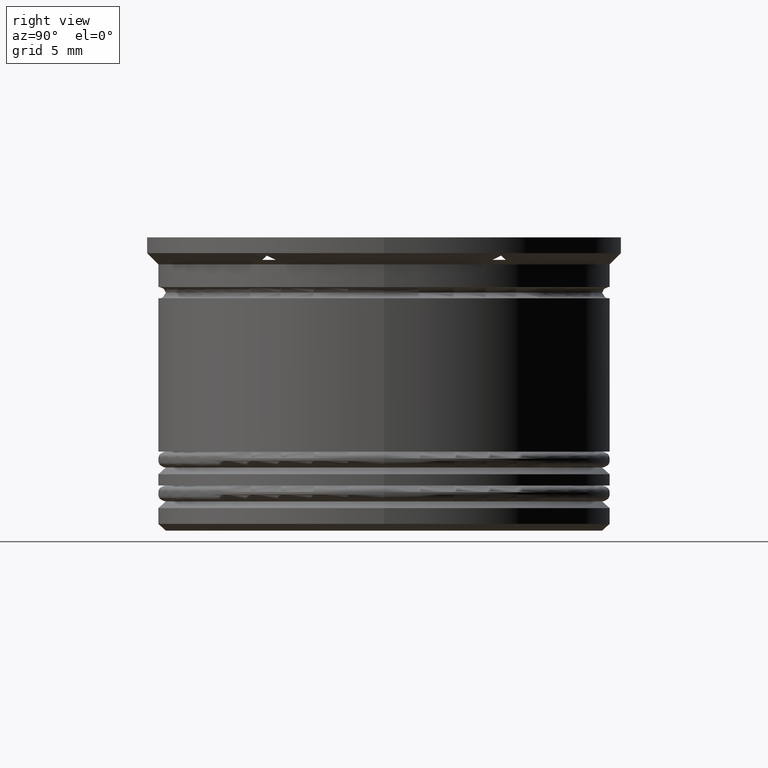
[diagram: clean part render]
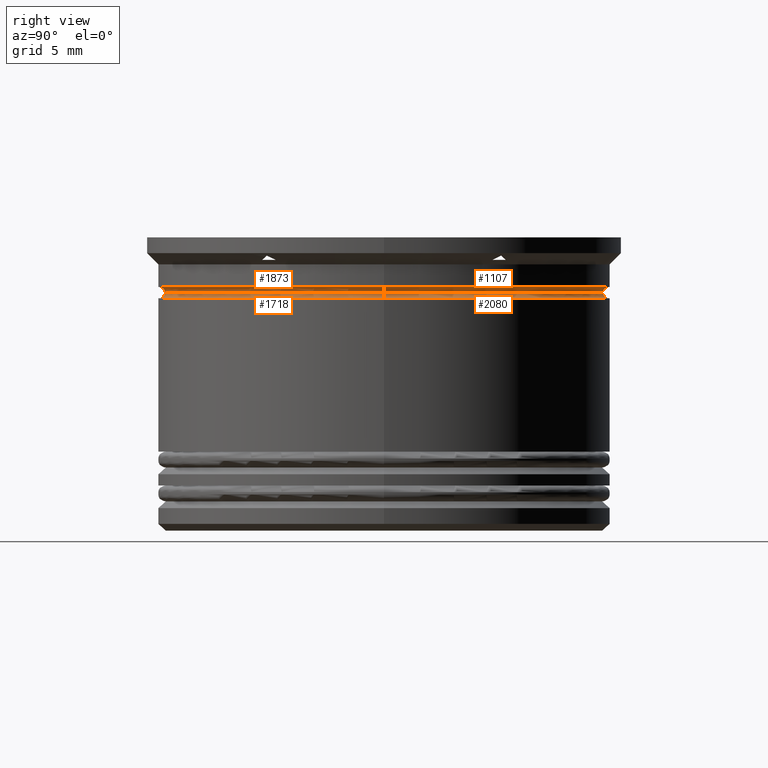
[diagram: same view with one multi-face feature highlighted, each face labeled with its STEP entity id]
A machine part, right view. The highlighted faces form ONE feature: a constant-radius fillet chain: 4 tangent blend faces with common blend radius 0.25 mm. The faces share edges in the B-rep.
Their STEP definitions:
[1] entity #1718 (Torus):
#8 = VERTEX_POINT ( 'NONE', #1612 ) ;
#23 = CIRCLE ( 'NONE', #274, 0.2500000000000002220 ) ;
#95 = AXIS2_PLACEMENT_3D ( 'NONE', #1422, #1590, #1444 ) ;
#148 = DIRECTION ( 'NONE',  ( 0.000000000000000000, -1.000000000000000000, 0.000000000000000000 ) ) ;
#195 = VERTEX_POINT ( 'NONE', #1335 ) ;
#262 = CARTESIAN_POINT ( 'NONE',  ( -9.700000000000004619, 1.187907395172932988E-15, -2.449999999999999734 ) ) ;
#268 = ORIENTED_EDGE ( 'NONE', *, *, #305, .F. ) ;
#274 = AXIS2_PLACEMENT_3D ( 'NONE', #1651, #148, #307 ) ;
#305 = EDGE_CURVE ( 'NONE', #901, #195, #1350, .T. ) ;
#307 = DIRECTION ( 'NONE',  ( 0.000000000000000000, 0.000000000000000000, -1.000000000000000000 ) ) ;
#411 = AXIS2_PLACEMENT_3D ( 'NONE', #1254, #1232, #1211 ) ;
#423 = TOROIDAL_SURFACE ( 'NONE', #677, 9.950000000000004619, 0.2500000000000002220 ) ;
#520 = CARTESIAN_POINT ( 'NONE',  ( 0.000000000000000000, 0.000000000000000000, -2.449999999999999734 ) ) ;
#677 = AXIS2_PLACEMENT_3D ( 'NONE', #520, #2145, #1979 ) ;
#806 = EDGE_CURVE ( 'NONE', #2071, #195, #2020, .T. ) ;
#876 = EDGE_LOOP ( 'NONE', ( #1939, #1609, #268, #1053 ) ) ;
#901 = VERTEX_POINT ( 'NONE', #1664 ) ;
#970 = EDGE_CURVE ( 'NONE', #2071, #8, #1743, .T. ) ;
#1013 = FACE_OUTER_BOUND ( 'NONE', #876, .T. ) ;
#1051 = CARTESIAN_POINT ( 'NONE',  ( 0.000000000000000000, 0.000000000000000000, -2.449999999999999734 ) ) ;
#1053 = ORIENTED_EDGE ( 'NONE', *, *, #2166, .F. ) ;
#1211 = DIRECTION ( 'NONE',  ( -1.000000000000000000, 0.000000000000000000, 0.000000000000000000 ) ) ;
#1232 = DIRECTION ( 'NONE',  ( 0.000000000000000000, 0.000000000000000000, -1.000000000000000000 ) ) ;
#1254 = CARTESIAN_POINT ( 'NONE',  ( 0.000000000000000000, 0.000000000000000000, -2.700000000000000178 ) ) ;
#1335 = CARTESIAN_POINT ( 'NONE',  ( -9.950000000000004619, 1.218523565151617170E-15, -2.700000000000000178 ) ) ;
#1350 = CIRCLE ( 'NONE', #411, 9.950000000000004619 ) ;
#1367 = DIRECTION ( 'NONE',  ( -0.000000000000000000, -0.000000000000000000, 1.000000000000000000 ) ) ;
#1422 = CARTESIAN_POINT ( 'NONE',  ( -9.950000000000004619, 1.218523565151616972E-15, -2.449999999999999734 ) ) ;
#1444 = DIRECTION ( 'NONE',  ( -1.000000000000000000, 1.224646799147357151E-16, 0.000000000000000000 ) ) ;
#1524 = AXIS2_PLACEMENT_3D ( 'NONE', #1051, #1367, #2026 ) ;
#1590 = DIRECTION ( 'NONE',  ( 1.224646799147353207E-16, 1.000000000000000000, 0.000000000000000000 ) ) ;
#1609 = ORIENTED_EDGE ( 'NONE', *, *, #806, .T. ) ;
#1612 = CARTESIAN_POINT ( 'NONE',  ( 9.700000000000004619, 0.000000000000000000, -2.449999999999999734 ) ) ;
#1651 = CARTESIAN_POINT ( 'NONE',  ( 9.950000000000004619, 0.000000000000000000, -2.449999999999999734 ) ) ;
#1664 = CARTESIAN_POINT ( 'NONE',  ( 9.950000000000004619, 0.000000000000000000, -2.700000000000000178 ) ) ;
#1718 = ADVANCED_FACE ( 'NONE', ( #1013 ), #423, .F. ) ;
#1743 = CIRCLE ( 'NONE', #1524, 9.700000000000004619 ) ;
#1939 = ORIENTED_EDGE ( 'NONE', *, *, #970, .F. ) ;
#1979 = DIRECTION ( 'NONE',  ( 1.000000000000000000, 0.000000000000000000, 0.000000000000000000 ) ) ;
#2020 = CIRCLE ( 'NONE', #95, 0.2500000000000002220 ) ;
#2026 = DIRECTION ( 'NONE',  ( 1.000000000000000000, 0.000000000000000000, 0.000000000000000000 ) ) ;
#2071 = VERTEX_POINT ( 'NONE', #262 ) ;
#2145 = DIRECTION ( 'NONE',  ( -0.000000000000000000, -0.000000000000000000, 1.000000000000000000 ) ) ;
#2166 = EDGE_CURVE ( 'NONE', #8, #901, #23, .T. ) ;
[2] entity #1873 (Torus):
#8 = VERTEX_POINT ( 'NONE', #1612 ) ;
#24 = CIRCLE ( 'NONE', #312, 9.950000000000004619 ) ;
#67 = CARTESIAN_POINT ( 'NONE',  ( 9.950000000000004619, 0.000000000000000000, -2.199999999999999734 ) ) ;
#149 = CARTESIAN_POINT ( 'NONE',  ( 9.950000000000004619, 0.000000000000000000, -2.449999999999999734 ) ) ;
#160 = ORIENTED_EDGE ( 'NONE', *, *, #280, .F. ) ;
#193 = EDGE_LOOP ( 'NONE', ( #2001, #1214, #160, #1519 ) ) ;
#262 = CARTESIAN_POINT ( 'NONE',  ( -9.700000000000004619, 1.187907395172932988E-15, -2.449999999999999734 ) ) ;
#280 = EDGE_CURVE ( 'NONE', #1203, #8, #1016, .T. ) ;
#312 = AXIS2_PLACEMENT_3D ( 'NONE', #741, #1385, #909 ) ;
#331 = DIRECTION ( 'NONE',  ( 0.000000000000000000, 0.000000000000000000, -1.000000000000000000 ) ) ;
#669 = DIRECTION ( 'NONE',  ( 0.000000000000000000, -1.000000000000000000, 0.000000000000000000 ) ) ;
#674 = VERTEX_POINT ( 'NONE', #1401 ) ;
#741 = CARTESIAN_POINT ( 'NONE',  ( 0.000000000000000000, 0.000000000000000000, -2.199999999999999734 ) ) ;
#772 = DIRECTION ( 'NONE',  ( -1.000000000000000000, 1.224646799147357151E-16, 0.000000000000000000 ) ) ;
#906 = DIRECTION ( 'NONE',  ( 1.000000000000000000, 0.000000000000000000, 0.000000000000000000 ) ) ;
#909 = DIRECTION ( 'NONE',  ( 1.000000000000000000, 0.000000000000000000, 0.000000000000000000 ) ) ;
#970 = EDGE_CURVE ( 'NONE', #2071, #8, #1743, .T. ) ;
#1016 = CIRCLE ( 'NONE', #1562, 0.2500000000000002220 ) ;
#1051 = CARTESIAN_POINT ( 'NONE',  ( 0.000000000000000000, 0.000000000000000000, -2.449999999999999734 ) ) ;
#1096 = CIRCLE ( 'NONE', #1961, 0.2500000000000002220 ) ;
#1102 = FACE_OUTER_BOUND ( 'NONE', #193, .T. ) ;
#1141 = EDGE_CURVE ( 'NONE', #674, #1203, #24, .T. ) ;
#1181 = EDGE_CURVE ( 'NONE', #674, #2071, #1096, .T. ) ;
#1203 = VERTEX_POINT ( 'NONE', #67 ) ;
#1214 = ORIENTED_EDGE ( 'NONE', *, *, #970, .T. ) ;
#1365 = CARTESIAN_POINT ( 'NONE',  ( 0.000000000000000000, 0.000000000000000000, -2.449999999999999734 ) ) ;
#1367 = DIRECTION ( 'NONE',  ( -0.000000000000000000, -0.000000000000000000, 1.000000000000000000 ) ) ;
#1385 = DIRECTION ( 'NONE',  ( -0.000000000000000000, -0.000000000000000000, 1.000000000000000000 ) ) ;
#1401 = CARTESIAN_POINT ( 'NONE',  ( -9.950000000000004619, 1.218523565151617170E-15, -2.199999999999999734 ) ) ;
#1519 = ORIENTED_EDGE ( 'NONE', *, *, #1141, .F. ) ;
#1524 = AXIS2_PLACEMENT_3D ( 'NONE', #1051, #1367, #2026 ) ;
#1530 = TOROIDAL_SURFACE ( 'NONE', #1820, 9.950000000000004619, 0.2500000000000002220 ) ;
#1562 = AXIS2_PLACEMENT_3D ( 'NONE', #149, #669, #331 ) ;
#1566 = CARTESIAN_POINT ( 'NONE',  ( -9.950000000000004619, 1.218523565151616972E-15, -2.449999999999999734 ) ) ;
#1612 = CARTESIAN_POINT ( 'NONE',  ( 9.700000000000004619, 0.000000000000000000, -2.449999999999999734 ) ) ;
#1743 = CIRCLE ( 'NONE', #1524, 9.700000000000004619 ) ;
#1820 = AXIS2_PLACEMENT_3D ( 'NONE', #1365, #1904, #906 ) ;
#1873 = ADVANCED_FACE ( 'NONE', ( #1102 ), #1530, .F. ) ;
#1904 = DIRECTION ( 'NONE',  ( -0.000000000000000000, -0.000000000000000000, 1.000000000000000000 ) ) ;
#1921 = DIRECTION ( 'NONE',  ( 1.224646799147353207E-16, 1.000000000000000000, 0.000000000000000000 ) ) ;
#1961 = AXIS2_PLACEMENT_3D ( 'NONE', #1566, #1921, #772 ) ;
#2001 = ORIENTED_EDGE ( 'NONE', *, *, #1181, .T. ) ;
#2026 = DIRECTION ( 'NONE',  ( 1.000000000000000000, 0.000000000000000000, 0.000000000000000000 ) ) ;
#2071 = VERTEX_POINT ( 'NONE', #262 ) ;
[3] entity #1107 (Torus):
#8 = VERTEX_POINT ( 'NONE', #1612 ) ;
#67 = CARTESIAN_POINT ( 'NONE',  ( 9.950000000000004619, 0.000000000000000000, -2.199999999999999734 ) ) ;
#149 = CARTESIAN_POINT ( 'NONE',  ( 9.950000000000004619, 0.000000000000000000, -2.449999999999999734 ) ) ;
#262 = CARTESIAN_POINT ( 'NONE',  ( -9.700000000000004619, 1.187907395172932988E-15, -2.449999999999999734 ) ) ;
#265 = CARTESIAN_POINT ( 'NONE',  ( 0.000000000000000000, 0.000000000000000000, -2.449999999999999734 ) ) ;
#280 = EDGE_CURVE ( 'NONE', #1203, #8, #1016, .T. ) ;
#318 = CIRCLE ( 'NONE', #561, 9.950000000000004619 ) ;
#331 = DIRECTION ( 'NONE',  ( 0.000000000000000000, 0.000000000000000000, -1.000000000000000000 ) ) ;
#362 = DIRECTION ( 'NONE',  ( -0.000000000000000000, -0.000000000000000000, 1.000000000000000000 ) ) ;
#364 = DIRECTION ( 'NONE',  ( 1.000000000000000000, 0.000000000000000000, 0.000000000000000000 ) ) ;
#449 = DIRECTION ( 'NONE',  ( -0.000000000000000000, -0.000000000000000000, 1.000000000000000000 ) ) ;
#561 = AXIS2_PLACEMENT_3D ( 'NONE', #2043, #362, #1039 ) ;
#562 = AXIS2_PLACEMENT_3D ( 'NONE', #265, #449, #1754 ) ;
#602 = AXIS2_PLACEMENT_3D ( 'NONE', #890, #2006, #364 ) ;
#620 = ORIENTED_EDGE ( 'NONE', *, *, #280, .T. ) ;
#669 = DIRECTION ( 'NONE',  ( 0.000000000000000000, -1.000000000000000000, 0.000000000000000000 ) ) ;
#674 = VERTEX_POINT ( 'NONE', #1401 ) ;
#772 = DIRECTION ( 'NONE',  ( -1.000000000000000000, 1.224646799147357151E-16, 0.000000000000000000 ) ) ;
#780 = TOROIDAL_SURFACE ( 'NONE', #562, 9.950000000000004619, 0.2500000000000002220 ) ;
#815 = ORIENTED_EDGE ( 'NONE', *, *, #1993, .F. ) ;
#890 = CARTESIAN_POINT ( 'NONE',  ( 0.000000000000000000, 0.000000000000000000, -2.449999999999999734 ) ) ;
#1016 = CIRCLE ( 'NONE', #1562, 0.2500000000000002220 ) ;
#1025 = EDGE_LOOP ( 'NONE', ( #620, #1770, #1935, #815 ) ) ;
#1039 = DIRECTION ( 'NONE',  ( 1.000000000000000000, 0.000000000000000000, 0.000000000000000000 ) ) ;
#1061 = EDGE_CURVE ( 'NONE', #8, #2071, #1637, .T. ) ;
#1096 = CIRCLE ( 'NONE', #1961, 0.2500000000000002220 ) ;
#1107 = ADVANCED_FACE ( 'NONE', ( #1269 ), #780, .F. ) ;
#1181 = EDGE_CURVE ( 'NONE', #674, #2071, #1096, .T. ) ;
#1203 = VERTEX_POINT ( 'NONE', #67 ) ;
#1269 = FACE_OUTER_BOUND ( 'NONE', #1025, .T. ) ;
#1401 = CARTESIAN_POINT ( 'NONE',  ( -9.950000000000004619, 1.218523565151617170E-15, -2.199999999999999734 ) ) ;
#1562 = AXIS2_PLACEMENT_3D ( 'NONE', #149, #669, #331 ) ;
#1566 = CARTESIAN_POINT ( 'NONE',  ( -9.950000000000004619, 1.218523565151616972E-15, -2.449999999999999734 ) ) ;
#1612 = CARTESIAN_POINT ( 'NONE',  ( 9.700000000000004619, 0.000000000000000000, -2.449999999999999734 ) ) ;
#1637 = CIRCLE ( 'NONE', #602, 9.700000000000004619 ) ;
#1754 = DIRECTION ( 'NONE',  ( 1.000000000000000000, 0.000000000000000000, 0.000000000000000000 ) ) ;
#1770 = ORIENTED_EDGE ( 'NONE', *, *, #1061, .T. ) ;
#1921 = DIRECTION ( 'NONE',  ( 1.224646799147353207E-16, 1.000000000000000000, 0.000000000000000000 ) ) ;
#1935 = ORIENTED_EDGE ( 'NONE', *, *, #1181, .F. ) ;
#1961 = AXIS2_PLACEMENT_3D ( 'NONE', #1566, #1921, #772 ) ;
#1993 = EDGE_CURVE ( 'NONE', #1203, #674, #318, .T. ) ;
#2006 = DIRECTION ( 'NONE',  ( -0.000000000000000000, -0.000000000000000000, 1.000000000000000000 ) ) ;
#2043 = CARTESIAN_POINT ( 'NONE',  ( 0.000000000000000000, 0.000000000000000000, -2.199999999999999734 ) ) ;
#2071 = VERTEX_POINT ( 'NONE', #262 ) ;
[4] entity #2080 (Torus):
#8 = VERTEX_POINT ( 'NONE', #1612 ) ;
#23 = CIRCLE ( 'NONE', #274, 0.2500000000000002220 ) ;
#95 = AXIS2_PLACEMENT_3D ( 'NONE', #1422, #1590, #1444 ) ;
#127 = CARTESIAN_POINT ( 'NONE',  ( 0.000000000000000000, 0.000000000000000000, -2.449999999999999734 ) ) ;
#148 = DIRECTION ( 'NONE',  ( 0.000000000000000000, -1.000000000000000000, 0.000000000000000000 ) ) ;
#195 = VERTEX_POINT ( 'NONE', #1335 ) ;
#262 = CARTESIAN_POINT ( 'NONE',  ( -9.700000000000004619, 1.187907395172932988E-15, -2.449999999999999734 ) ) ;
#274 = AXIS2_PLACEMENT_3D ( 'NONE', #1651, #148, #307 ) ;
#276 = FACE_OUTER_BOUND ( 'NONE', #1316, .T. ) ;
#307 = DIRECTION ( 'NONE',  ( 0.000000000000000000, 0.000000000000000000, -1.000000000000000000 ) ) ;
#351 = CIRCLE ( 'NONE', #1572, 9.950000000000004619 ) ;
#364 = DIRECTION ( 'NONE',  ( 1.000000000000000000, 0.000000000000000000, 0.000000000000000000 ) ) ;
#591 = DIRECTION ( 'NONE',  ( -0.000000000000000000, -0.000000000000000000, 1.000000000000000000 ) ) ;
#602 = AXIS2_PLACEMENT_3D ( 'NONE', #890, #2006, #364 ) ;
#757 = DIRECTION ( 'NONE',  ( -1.000000000000000000, 0.000000000000000000, 0.000000000000000000 ) ) ;
#806 = EDGE_CURVE ( 'NONE', #2071, #195, #2020, .T. ) ;
#890 = CARTESIAN_POINT ( 'NONE',  ( 0.000000000000000000, 0.000000000000000000, -2.449999999999999734 ) ) ;
#901 = VERTEX_POINT ( 'NONE', #1664 ) ;
#997 = ORIENTED_EDGE ( 'NONE', *, *, #806, .F. ) ;
#1034 = DIRECTION ( 'NONE',  ( 0.000000000000000000, 0.000000000000000000, -1.000000000000000000 ) ) ;
#1061 = EDGE_CURVE ( 'NONE', #8, #2071, #1637, .T. ) ;
#1316 = EDGE_LOOP ( 'NONE', ( #1371, #1496, #1506, #997 ) ) ;
#1335 = CARTESIAN_POINT ( 'NONE',  ( -9.950000000000004619, 1.218523565151617170E-15, -2.700000000000000178 ) ) ;
#1371 = ORIENTED_EDGE ( 'NONE', *, *, #1061, .F. ) ;
#1422 = CARTESIAN_POINT ( 'NONE',  ( -9.950000000000004619, 1.218523565151616972E-15, -2.449999999999999734 ) ) ;
#1444 = DIRECTION ( 'NONE',  ( -1.000000000000000000, 1.224646799147357151E-16, 0.000000000000000000 ) ) ;
#1496 = ORIENTED_EDGE ( 'NONE', *, *, #2166, .T. ) ;
#1506 = ORIENTED_EDGE ( 'NONE', *, *, #1806, .F. ) ;
#1518 = CARTESIAN_POINT ( 'NONE',  ( 0.000000000000000000, 0.000000000000000000, -2.700000000000000178 ) ) ;
#1572 = AXIS2_PLACEMENT_3D ( 'NONE', #1518, #1034, #757 ) ;
#1590 = DIRECTION ( 'NONE',  ( 1.224646799147353207E-16, 1.000000000000000000, 0.000000000000000000 ) ) ;
#1612 = CARTESIAN_POINT ( 'NONE',  ( 9.700000000000004619, 0.000000000000000000, -2.449999999999999734 ) ) ;
#1637 = CIRCLE ( 'NONE', #602, 9.700000000000004619 ) ;
#1643 = AXIS2_PLACEMENT_3D ( 'NONE', #127, #591, #1773 ) ;
#1651 = CARTESIAN_POINT ( 'NONE',  ( 9.950000000000004619, 0.000000000000000000, -2.449999999999999734 ) ) ;
#1664 = CARTESIAN_POINT ( 'NONE',  ( 9.950000000000004619, 0.000000000000000000, -2.700000000000000178 ) ) ;
#1670 = TOROIDAL_SURFACE ( 'NONE', #1643, 9.950000000000004619, 0.2500000000000002220 ) ;
#1773 = DIRECTION ( 'NONE',  ( 1.000000000000000000, 0.000000000000000000, 0.000000000000000000 ) ) ;
#1806 = EDGE_CURVE ( 'NONE', #195, #901, #351, .T. ) ;
#2006 = DIRECTION ( 'NONE',  ( -0.000000000000000000, -0.000000000000000000, 1.000000000000000000 ) ) ;
#2020 = CIRCLE ( 'NONE', #95, 0.2500000000000002220 ) ;
#2071 = VERTEX_POINT ( 'NONE', #262 ) ;
#2080 = ADVANCED_FACE ( 'NONE', ( #276 ), #1670, .F. ) ;
#2166 = EDGE_CURVE ( 'NONE', #8, #901, #23, .T. ) ;